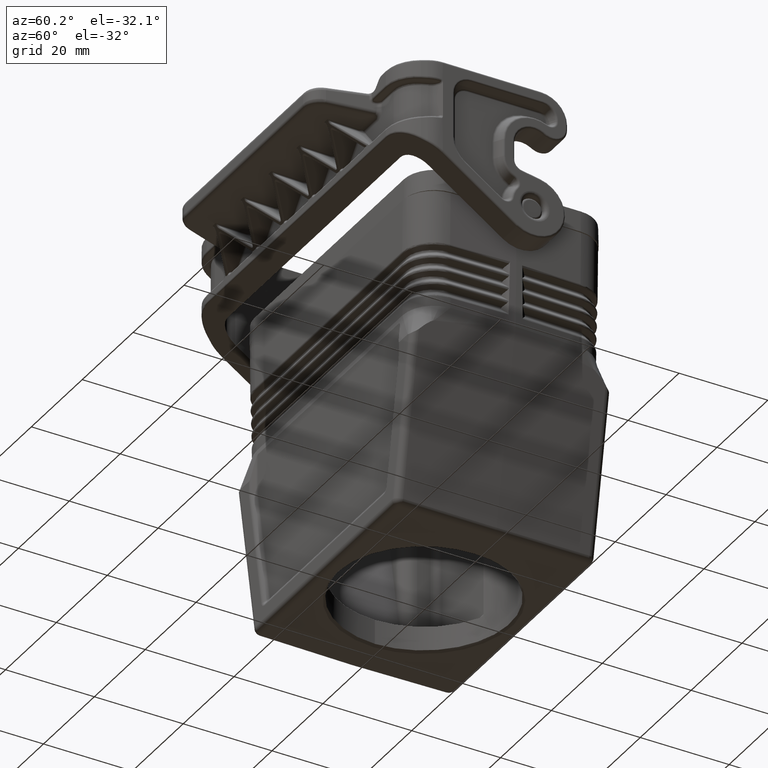
[diagram: clean part render]
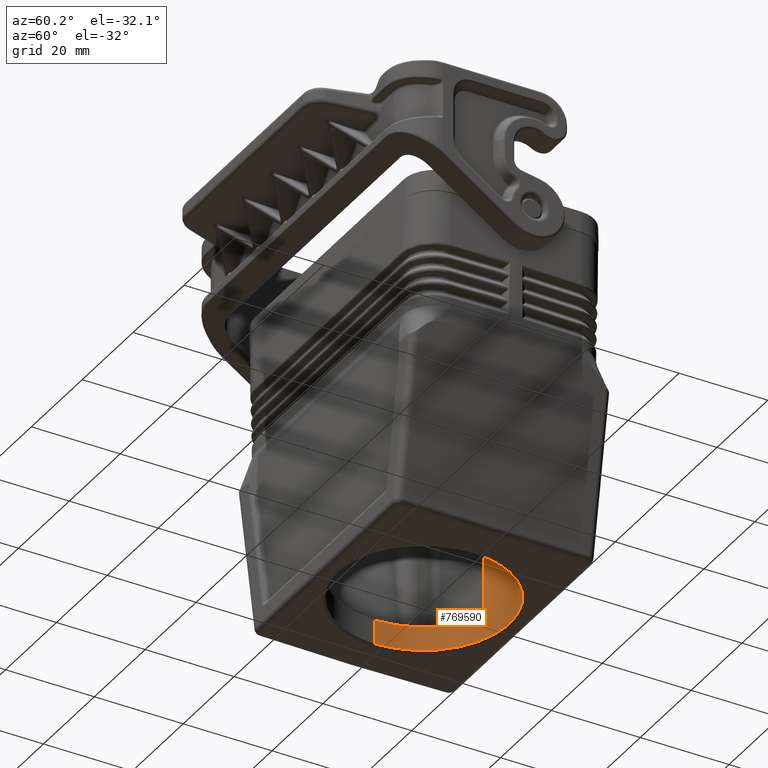
[diagram: same view with one face highlighted and labeled with its STEP entity id]
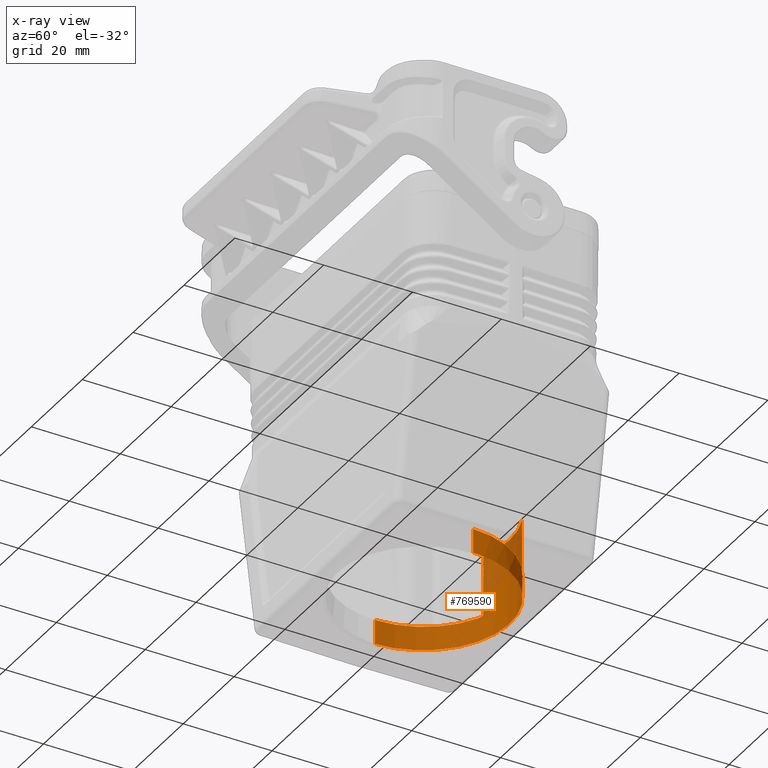
[diagram: x-ray of the same camera — body ghosted, the highlighted face saturated]
A machine part, auxiliary view. The second image highlights one B-rep face of the part: STEP entity #769590.
The next image is the same camera in x-ray: the body ghosted, the highlighted face saturated — about 5% of this face is hidden behind the body in this view.
In plain terms, the highlighted cylindrical surface (partial cylindrical patch) has radius 19.3 mm, axis along (0, 0, 1).
Its self-contained STEP definition (entity closure, byte-faithful):
#334410=CARTESIAN_POINT('',(95.6200000000002,27.41,70.0000000000001));
#334420=DIRECTION('',(-2.4980018054066E-16,2.4980018054066E-16,-1.));
#334430=DIRECTION('',(-6.24001301981464E-32,-1.,-2.4980018054066E-16));
#334440=AXIS2_PLACEMENT_3D('',#334410,#334420,#334430);
#334450=CYLINDRICAL_SURFACE('',#334440,19.3);
#350080=CARTESIAN_POINT('',(78.3700000000001,36.0660672363375,64.));
#350090=VERTEX_POINT('',#350080);
#350120=CARTESIAN_POINT('',(95.6200000000002,27.41,64.));
#350130=DIRECTION('',(-2.4980018054066E-16,2.4980018054066E-16,-1.));
#350140=DIRECTION('',(-6.24001301981464E-32,-1.,-2.4980018054066E-16));
#350150=AXIS2_PLACEMENT_3D('',#350120,#350130,#350140);
#350160=CIRCLE('',#350150,19.3);
#350170=CARTESIAN_POINT('',(95.6200000000002,46.71,64.));
#350180=VERTEX_POINT('',#350170);
#350190=EDGE_CURVE('',#350090,#350180,#350160,.T.);
#365250=CARTESIAN_POINT('',(78.3700000000001,25.16326959705,63.5));
#365260=DIRECTION('',(4.65187877420629E-18,1.,2.66505956485224E-16));
#365270=DIRECTION('',(0.,2.66505956485224E-16,-1.));
#365280=AXIS2_PLACEMENT_3D('',#365250,#365260,#365270);
#365290=CYLINDRICAL_SURFACE('',#365280,0.5);
#365430=CARTESIAN_POINT('',(77.8699999999755,34.9880934276542,
63.5000000000001));
#365440=VERTEX_POINT('',#365430);
#365470=CARTESIAN_POINT('',(78.3699999999749,36.0660672363502,
64.0000000000006));
#365480=CARTESIAN_POINT('',(78.3571605472998,36.040480494404,
63.9999999999993));
#365490=CARTESIAN_POINT('',(78.3443784947892,36.0148660775239,
63.999506005606));
#365500=CARTESIAN_POINT('',(78.33166022195,35.9892370126188,
63.998527894324));
#365510=CARTESIAN_POINT('',(78.3189419923464,35.9636080348392,
63.9975497863671));
#365520=CARTESIAN_POINT('',(78.3062888281933,35.9379670117321,
63.9960876964608));
#365530=CARTESIAN_POINT('',(78.2937054512277,35.9123242239506,
63.9941448591534));
#365540=CARTESIAN_POINT('',(78.2811220249833,35.8866813357472,
63.9922020142375));
#365550=CARTESIAN_POINT('',(78.2686141907328,35.8610486197536,
63.9897797248363));
#365560=CARTESIAN_POINT('',(78.2561723318657,35.8354073320717,
63.9868708883956));
#365570=CARTESIAN_POINT('',(78.2437317080912,35.8097685897782,
63.9839623407126));
#365580=CARTESIAN_POINT('',(78.2313634577482,35.7841343172907,
63.9805683249929));
#365590=CARTESIAN_POINT('',(78.2190800750108,35.7585319526313,
63.9766793222296));
#365600=CARTESIAN_POINT('',(78.2067966897909,35.7329295827978,
63.9727903186804));
#365610=CARTESIAN_POINT('',(78.194598006849,35.7073587753368,
63.9684064035724));
#365620=CARTESIAN_POINT('',(78.1824962669705,35.6818476509529,
63.9635108953412));
#365630=CARTESIAN_POINT('',(78.1703945464258,35.6563365673257,
63.9586153949311));
#365640=CARTESIAN_POINT('',(78.1583895361083,35.6308846697078,
63.9532083970962));
#365650=CARTESIAN_POINT('',(78.1464940083107,35.6055224579252,
63.9472639843328));
#365660=CARTESIAN_POINT('',(78.134599420597,35.5801622504763,
63.9413200413465));
#365670=CARTESIAN_POINT('',(78.1228146951973,35.5548927809595,
63.9348403277296));
#365680=CARTESIAN_POINT('',(78.1111253079257,35.5296863866209,
63.9277661672129));
#365690=CARTESIAN_POINT('',(78.0994389158601,35.504486450991,
63.9206938193291));
#365700=CARTESIAN_POINT('',(78.0878614445315,35.4793786080569,
63.9130346278704));
#365710=CARTESIAN_POINT('',(78.0764204227209,35.4544276126295,
63.9047357555803));
#365720=CARTESIAN_POINT('',(78.0649794411793,35.429476705022,
63.8964369124998));
#365730=CARTESIAN_POINT('',(78.053674084129,35.4046808298722,
63.887498699931));
#365740=CARTESIAN_POINT('',(78.0425337177205,35.3801116112126,
63.8778436634057));
#365750=CARTESIAN_POINT('',(78.0369634914656,35.3678269069379,
63.8730161078323));
#365760=CARTESIAN_POINT('',(78.0314344505539,35.3555987740484,
63.8680088053998));
#365770=CARTESIAN_POINT('',(78.0259507743242,35.3434375805503,
63.8628086690144));
#365780=CARTESIAN_POINT('',(78.0204647266283,35.3312711278321,
63.8576062837822));
#365790=CARTESIAN_POINT('',(78.0150355250238,35.3191972022701,
63.8522229946718));
#365800=CARTESIAN_POINT('',(78.0096295747503,35.3071421087303,
63.8466023032315));
#365810=CARTESIAN_POINT('',(78.0042246086391,35.2950892098407,
63.8409826350476));
#365820=CARTESIAN_POINT('',(77.9988524353079,35.2830762258263,
63.8351341485032));
#365830=CARTESIAN_POINT('',(77.9935299524067,35.271142007446,
63.8290445308273));
#365840=CARTESIAN_POINT('',(77.9882074473619,35.2592077394145,
63.822954887816));
#365850=CARTESIAN_POINT('',(77.9829345737572,35.2473521071016,
63.8166241732663));
#365860=CARTESIAN_POINT('',(77.9777277625786,35.2356137331626,
63.8100362748935));
#365870=CARTESIAN_POINT('',(77.9725209307087,35.2238753125766,
63.8034483503412));
#365880=CARTESIAN_POINT('',(77.967380029752,35.2122538555797,
63.7966032738787));
#365890=CARTESIAN_POINT('',(77.9623214275152,35.200788627013,
63.7894791556179));
#365900=CARTESIAN_POINT('',(77.9572628201626,35.1893233868514,
63.7823550301523));
#365910=CARTESIAN_POINT('',(77.9522862553869,35.1780137935191,
63.774951806704));
#365920=CARTESIAN_POINT('',(77.9474090540628,35.1669020399457,
63.7672393915965));
#365930=CARTESIAN_POINT('',(77.9441812681894,35.1595481583177,
63.7621352298284));
#365940=CARTESIAN_POINT('',(77.9409969462894,35.1522808152707,
63.7568953651192));
#365950=CARTESIAN_POINT('',(77.9378617061567,35.1451137908274,
63.7515084392337));
#365960=CARTESIAN_POINT('',(77.9347264770362,35.1379467915574,
63.7461215322691));
#365970=CARTESIAN_POINT('',(77.931640244944,35.1308799156296,
63.7405874948665));
#365980=CARTESIAN_POINT('',(77.9286095839061,35.1239292935016,
63.7348925298655));
#365990=CARTESIAN_POINT('',(77.9255789451798,35.116978722544,
63.7291976067907));
#366000=CARTESIAN_POINT('',(77.9226037571549,35.1101441268878,
63.7233416273561));
#366010=CARTESIAN_POINT('',(77.9196921323813,35.1034453524733,
63.7173081322943));
#366020=CARTESIAN_POINT('',(77.9167796786075,35.096744670778,
63.7112729193706));
#366030=CARTESIAN_POINT('',(77.9139342567022,35.0901878048386,
63.7050681249578));
#366040=CARTESIAN_POINT('',(77.9111560365575,35.0837764808757,
63.6986509934845));
#366050=CARTESIAN_POINT('',(77.9055983327169,35.0709509170411,
63.6858138119878));
#366060=CARTESIAN_POINT('',(77.9003078067043,35.0587030300489,
63.6721191225455));
#366070=CARTESIAN_POINT('',(77.8954698134348,35.0474753463104,
63.6575471422757));
#366080=CARTESIAN_POINT('',(77.8930507079316,35.041861251787,
63.6502608242306));
#366090=CARTESIAN_POINT('',(77.8907445272037,35.0365018551406,
63.6427539872935));
#366100=CARTESIAN_POINT('',(77.888575622013,35.031455866678,
63.6350206216838));
#366110=CARTESIAN_POINT('',(77.8874911647826,35.028932861663,
63.631153922352));
#366120=CARTESIAN_POINT('',(77.8864410347144,35.0264882335887,
63.6272305052574));
#366130=CARTESIAN_POINT('',(77.8854284561382,35.0241297700813,
63.6232494173588));
#366140=CARTESIAN_POINT('',(77.8844164095142,35.021772545579,
63.6192704209015));
#366150=CARTESIAN_POINT('',(77.8834379464105,35.0194922431391,
63.6152182283979));
#366160=CARTESIAN_POINT('',(77.8824986163896,35.0173020622564,
63.6110963589767));
#366170=CARTESIAN_POINT('',(77.8805785913632,35.0128252521754,
63.6026711066505));
#366180=CARTESIAN_POINT('',(77.8788235259116,35.0087283601286,
63.5939576371473));
#366190=CARTESIAN_POINT('',(77.8772804184329,35.0051235572481,
63.5850141984641));
#366200=CARTESIAN_POINT('',(77.8757372775288,35.0015186762832,
63.5760705660553));
#366210=CARTESIAN_POINT('',(77.8744071129814,34.9984083081178,
63.5669013837977));
#366220=CARTESIAN_POINT('',(77.8733262218664,34.9958796334044,
63.5575774097583));
#366230=CARTESIAN_POINT('',(77.8727858080088,34.9946153702076,
63.5529156961882));
#366240=CARTESIAN_POINT('',(77.8723075861651,34.993496231159,
63.5482160722117));
#366250=CARTESIAN_POINT('',(77.8718947657384,34.9925299599519,
63.5434876488342));
#366260=CARTESIAN_POINT('',(77.8714822941885,34.9915645053462,
63.5387632214743));
#366270=CARTESIAN_POINT('',(77.8711336927746,34.9907483351912,
63.5339948598622));
#366280=CARTESIAN_POINT('',(77.8708523144242,34.9900894741164,
63.5291819804712));
#366290=CARTESIAN_POINT('',(77.8705710146558,34.9894307970455,
63.5243704451996));
#366300=CARTESIAN_POINT('',(77.870357428729,34.9889305791978,
63.5195202982474));
#366310=CARTESIAN_POINT('',(77.8702146659232,34.9885962152753,
63.5146499092707));
#366320=CARTESIAN_POINT('',(77.8700719043239,34.9882618541787,
63.5097795614569));
#366330=CARTESIAN_POINT('',(77.8699999999755,34.9880934276542,
63.5048895540928));
#366340=CARTESIAN_POINT('',(77.8699999999755,34.9880934276542,
63.5000000000001));
#366350=B_SPLINE_CURVE_WITH_KNOTS('',3,(#365470,#365480,#365490,#365500,
#365510,#365520,#365530,#365540,#365550,#365560,#365570,#365580,#365590,
#365600,#365610,#365620,#365630,#365640,#365650,#365660,#365670,#365680,
#365690,#365700,#365710,#365720,#365730,#365740,#365750,#365760,#365770,
#365780,#365790,#365800,#365810,#365820,#365830,#365840,#365850,#365860,
#365870,#365880,#365890,#365900,#365910,#365920,#365930,#365940,#365950,
#365960,#365970,#365980,#365990,#366000,#366010,#366020,#366030,#366040,
#366050,#366060,#366070,#366080,#366090,#366100,#366110,#366120,#366130,
#366140,#366150,#366160,#366170,#366180,#366190,#366200,#366210,#366220,
#366230,#366240,#366250,#366260,#366270,#366280,#366290,#366300,#366310,
#366320,#366330,#366340),.UNSPECIFIED.,.F.,.F.,(4,3,3,3,3,3,3,3,3,3,3,3,
3,3,3,3,3,3,3,3,3,3,3,3,3,3,3,3,3,4),(0.,0.0858820054448241,
0.171766023070007,0.257664616245117,0.34363128398723,0.429614163113653,
0.515559106772825,0.60148480264789,0.687507661549433,0.773507184651297,
0.816474040687193,0.859445348491435,0.902615466441479,0.945899484436656,
0.989177958283305,1.0323712890306,1.06089206851353,1.08936288619227,
1.11779645618503,1.14622186137835,1.20330016027379,1.2317964113734,
1.24601511611649,1.2602607491345,1.28953025599367,1.31877065343851,
1.33332650115069,1.34787928501832,1.36250505580773,1.37716855394018),
.UNSPECIFIED.);
#366360=SURFACE_CURVE('',#366350,(#365290,#334450),.CURVE_3D.);
#366370=EDGE_CURVE('',#350090,#365440,#366360,.T.);
#369450=CARTESIAN_POINT('',(77.8699999999755,19.8319065723457,
63.5000000000069));
#369460=VERTEX_POINT('',#369450);
#369490=CARTESIAN_POINT('',(77.8700000000001,19.8319065722309,
70.0000000000001));
#369500=DIRECTION('',(-2.4980018054066E-16,2.4980018054066E-16,-1.));
#369510=VECTOR('',#369500,1.);
#369520=LINE('',#369490,#369510);
#369530=CARTESIAN_POINT('',(77.8700000000001,19.831906572231,
50.0000000000001));
#369540=VERTEX_POINT('',#369530);
#369550=EDGE_CURVE('',#369460,#369540,#369520,.T.);
#369610=CARTESIAN_POINT('',(77.8700000000001,34.988093427769,
50.0000000000001));
#369620=VERTEX_POINT('',#369610);
#369650=CARTESIAN_POINT('',(77.8700000000001,34.988093427769,
70.0000000000001));
#369660=DIRECTION('',(-2.4980018054066E-16,2.4980018054066E-16,-1.));
#369670=VECTOR('',#369660,1.);
#369680=LINE('',#369650,#369670);
#369690=EDGE_CURVE('',#365440,#369620,#369680,.T.);
#616340=CARTESIAN_POINT('',(95.6200000000002,8.10999999999997,
69.5000180708964));
#616350=VERTEX_POINT('',#616340);
#616730=CARTESIAN_POINT('',(95.6200000000002,46.71,69.5000180708965));
#616740=VERTEX_POINT('',#616730);
#697570=CARTESIAN_POINT('',(95.6199999999998,46.71,69.5000180708965));
#697580=CARTESIAN_POINT('',(95.5981492547411,46.71,69.4998273823137));
#697590=CARTESIAN_POINT('',(95.5769630462747,46.7099652123489,
69.4996053838933));
#697600=CARTESIAN_POINT('',(95.0726794048117,46.7082524646061,
69.4952045703989));
#697610=CARTESIAN_POINT('',(94.5907460345904,46.688576321461,
69.4909988400722));
#697620=CARTESIAN_POINT('',(92.5124276627444,46.525435350156,
69.472861951759));
#697630=CARTESIAN_POINT('',(90.9369706378416,46.2016577472007,
69.4591137869674));
#697640=CARTESIAN_POINT('',(87.9023683601915,45.1721875596111,
69.4326331379875));
#697650=CARTESIAN_POINT('',(86.4550210715347,44.4704980001263,
69.4200036039501));
#697660=CARTESIAN_POINT('',(83.7671609873971,42.7255939351403,
69.3965498920046));
#697670=CARTESIAN_POINT('',(82.5370866832362,41.6891752729563,
69.3858167956813));
#697680=CARTESIAN_POINT('',(80.3614624180324,39.3362089248555,
69.3668335617423));
#697690=CARTESIAN_POINT('',(79.4243653854254,38.0288065494302,
69.358657176789));
#697700=CARTESIAN_POINT('',(77.8949504689908,35.2125719846799,
69.3453128263185));
#697710=CARTESIAN_POINT('',(77.3085672727083,33.7146866572993,
69.3401966394867));
#697720=CARTESIAN_POINT('',(76.5195598982413,30.6085639141087,
69.3333125849276));
#697730=CARTESIAN_POINT('',(76.3200000000002,29.0123946979873,
69.3315714516384));
#697740=CARTESIAN_POINT('',(76.3200000000002,25.8076053020127,
69.3315714516384));
#697750=CARTESIAN_POINT('',(76.5195598982072,24.2114360860252,
69.3333125849273));
#697760=CARTESIAN_POINT('',(77.3085672726742,21.1053133428347,
69.3401966394864));
#697770=CARTESIAN_POINT('',(77.8949504687418,19.6074280157785,
69.3453128263163));
#697780=CARTESIAN_POINT('',(79.4243653851764,16.7911934510282,
69.3586571767869));
#697790=CARTESIAN_POINT('',(80.3614624173104,15.4837910759253,
69.366833561736));
#697800=CARTESIAN_POINT('',(82.5370866825143,13.1308247278245,
69.3858167956751));
#697810=CARTESIAN_POINT('',(83.7671609860226,12.094406065752,
69.3965498919926));
#697820=CARTESIAN_POINT('',(86.4550210701603,10.3495020007659,
69.4200036039381));
#697830=CARTESIAN_POINT('',(87.902368358191,9.64781244106753,
69.43263313797));
#697840=CARTESIAN_POINT('',(90.9369706358413,8.61834225347787,
69.4591137869499));
#697850=CARTESIAN_POINT('',(92.5124276603817,8.29456465002941,
69.4728619517384));
#697860=CARTESIAN_POINT('',(94.5907460343727,8.13142367855608,
69.4909988400703));
#697870=CARTESIAN_POINT('',(95.072679404597,8.11174753539548,
69.495204570397));
#697880=CARTESIAN_POINT('',(95.576963046276,8.11003478765226,
69.4996053838933));
#697890=CARTESIAN_POINT('',(95.5981492547418,8.10999999999997,
69.4998273823137));
#697900=CARTESIAN_POINT('',(95.6199999999998,8.10999999999997,
69.5000180708964));
#697910=B_SPLINE_CURVE_WITH_KNOTS('',3,(#697570,#697580,#697590,#697600,
#697610,#697620,#697630,#697640,#697650,#697660,#697670,#697680,#697690,
#697700,#697710,#697720,#697730,#697740,#697750,#697760,#697770,#697780,
#697790,#697800,#697810,#697820,#697830,#697840,#697850,#697860,#697870,
#697880,#697890,#697900),.UNSPECIFIED.,.F.,.F.,(4,2,2,2,2,2,2,2,2,2,2,2,
2,2,2,2,4),(0.,0.0684987025593491,1.5342248591009,6.40053277802679,
11.2668218696782,16.1329019644747,20.9989452241505,25.8648722623451,
30.730781127161,35.5966899919769,40.4626170293319,45.3286602849993,
50.1947403693282,55.0610294405579,59.9273373262307,61.3930634699251,
61.4615621718521),.UNSPECIFIED.);
#697920=EDGE_CURVE('',#616740,#616350,#697910,.T.);
#706300=CARTESIAN_POINT('',(95.6200000000002,27.41,50.0000000000001));
#706310=DIRECTION('',(-2.4980018054066E-16,2.4980018054066E-16,-1.));
#706320=DIRECTION('',(-6.24001301981464E-32,-1.,-2.4980018054066E-16));
#706330=AXIS2_PLACEMENT_3D('',#706300,#706310,#706320);
#706340=CIRCLE('',#706330,19.3);
#707380=EDGE_CURVE('',#369540,#369620,#706340,.T.);
#768360=CARTESIAN_POINT('',(95.6200000000002,27.41,70.0000000000001));
#768370=DIRECTION('',(-2.4980018054066E-16,2.4980018054066E-16,-1.));
#768380=DIRECTION('',(-6.24001301981464E-32,-1.,-2.4980018054066E-16));
#768390=AXIS2_PLACEMENT_3D('',#768360,#768370,#768380);
#768400=CYLINDRICAL_SURFACE('',#768390,19.3);
#768410=CARTESIAN_POINT('',(95.6200000000002,46.71,70.0000000000001));
#768420=DIRECTION('',(-2.4980018054066E-16,2.4980018054066E-16,-1.));
#768430=VECTOR('',#768420,1.);
#768440=LINE('',#768410,#768430);
#768450=EDGE_CURVE('',#616740,#350180,#768440,.T.);
#768460=ORIENTED_EDGE('',*,*,#768450,.F.);
#768470=ORIENTED_EDGE('',*,*,#350190,.T.);
#768480=ORIENTED_EDGE('',*,*,#366370,.F.);
#768490=ORIENTED_EDGE('',*,*,#369690,.F.);
#768500=ORIENTED_EDGE('',*,*,#707380,.T.);
#768510=ORIENTED_EDGE('',*,*,#369550,.T.);
#768520=CARTESIAN_POINT('',(77.8699999999755,19.8319065723457,
63.5000000000069));
#768530=CARTESIAN_POINT('',(77.8699999999756,19.8319065723456,
63.5048895540961));
#768540=CARTESIAN_POINT('',(77.8700719043239,19.8317381458212,
63.5097795614599));
#768550=CARTESIAN_POINT('',(77.8702146659233,19.8314037847243,
63.5146499092766));
#768560=CARTESIAN_POINT('',(77.8703574287295,19.8310694208011,
63.5195202982617));
#768570=CARTESIAN_POINT('',(77.8705710146566,19.8305692029527,
63.5243704452137));
#768580=CARTESIAN_POINT('',(77.8708523144245,19.8299105258828,
63.5291819804762));
#768590=CARTESIAN_POINT('',(77.8711336927748,19.8292516648082,
63.5339948598653));
#768600=CARTESIAN_POINT('',(77.8714822941887,19.8284354946533,
63.538763221477));
#768610=CARTESIAN_POINT('',(77.8718947657387,19.8274700400472,
63.5434876488382));
#768620=CARTESIAN_POINT('',(77.872307586166,19.8265037688389,
63.5482160722213));
#768630=CARTESIAN_POINT('',(77.8727858080099,19.8253846297899,
63.5529156961973));
#768640=CARTESIAN_POINT('',(77.8733262218668,19.8241203665947,
63.5575774097614));
#768650=CARTESIAN_POINT('',(77.8744071129818,19.8215916918813,
63.5669013838003));
#768660=CARTESIAN_POINT('',(77.8757372775291,19.818481323716,
63.5760705660573));
#768670=CARTESIAN_POINT('',(77.8772804184332,19.8148764427514,
63.5850141984654));
#768680=CARTESIAN_POINT('',(77.8788235259117,19.811271639871,
63.5939576371482));
#768690=CARTESIAN_POINT('',(77.8805785913633,19.8071747478243,
63.6026711066508));
#768700=CARTESIAN_POINT('',(77.8824986163895,19.8026979377437,
63.6110963589764));
#768710=CARTESIAN_POINT('',(77.8834379464108,19.80050775686,
63.6152182283994));
#768720=CARTESIAN_POINT('',(77.8844164095146,19.7982274544201,
63.6192704209031));
#768730=CARTESIAN_POINT('',(77.8854284561382,19.7958702299186,
63.6232494173589));
#768740=CARTESIAN_POINT('',(77.8864410347141,19.7935117664117,
63.6272305052566));
#768750=CARTESIAN_POINT('',(77.8874911647823,19.7910671383375,
63.6311539223512));
#768760=CARTESIAN_POINT('',(77.8885756220131,19.7885441333217,
63.6350206216841));
#768770=CARTESIAN_POINT('',(77.8907445272038,19.783498144859,
63.642753987294));
#768780=CARTESIAN_POINT('',(77.8930507079318,19.7781387482125,
63.6502608242312));
#768790=CARTESIAN_POINT('',(77.895469813435,19.7725246536889,
63.6575471422765));
#768800=CARTESIAN_POINT('',(77.9003078067047,19.7612969699501,
63.6721191225466));
#768810=CARTESIAN_POINT('',(77.9055983327175,19.7490490829576,
63.6858138119892));
#768820=CARTESIAN_POINT('',(77.9111560365583,19.7362235191226,
63.6986509934861));
#768830=CARTESIAN_POINT('',(77.913934256703,19.7298121951596,
63.7050681249595));
#768840=CARTESIAN_POINT('',(77.9167796786084,19.72325532922,
63.7112729193725));
#768850=CARTESIAN_POINT('',(77.9196921323823,19.7165546475245,
63.7173081322963));
#768860=CARTESIAN_POINT('',(77.9226037571559,19.7098558731097,
63.7233416273582));
#768870=CARTESIAN_POINT('',(77.9255789451809,19.7030212774535,
63.7291976067928));
#768880=CARTESIAN_POINT('',(77.9286095839073,19.6960707064956,
63.7348925298677));
#768890=CARTESIAN_POINT('',(77.9316402449453,19.6891200843673,
63.7405874948689));
#768900=CARTESIAN_POINT('',(77.9347264770375,19.6820532084395,
63.7461215322715));
#768910=CARTESIAN_POINT('',(77.9378617061582,19.6748862091692,
63.7515084392362));
#768920=CARTESIAN_POINT('',(77.940996946291,19.6677191847258,
63.7568953651218));
#768930=CARTESIAN_POINT('',(77.9441812681911,19.6604518416785,
63.7621352298311));
#768940=CARTESIAN_POINT('',(77.9474090540646,19.6530979600503,
63.7672393915993));
#768950=CARTESIAN_POINT('',(77.9522862553886,19.6419862064769,
63.7749518067067));
#768960=CARTESIAN_POINT('',(77.9572628201643,19.6306766131447,
63.7823550301548));
#768970=CARTESIAN_POINT('',(77.9623214275169,19.619211372983,
63.7894791556203));
#768980=CARTESIAN_POINT('',(77.9673800297537,19.6077461444164,
63.796603273881));
#768990=CARTESIAN_POINT('',(77.9725209307104,19.5961246874194,
63.8034483503435));
#769000=CARTESIAN_POINT('',(77.9777277625803,19.5843862668336,
63.8100362748956));
#769010=CARTESIAN_POINT('',(77.9829345737525,19.5726478929088,
63.8166241732603));
#769020=CARTESIAN_POINT('',(77.9882074473571,19.5607922605962,
63.8229548878106));
#769030=CARTESIAN_POINT('',(77.9935299524084,19.5488579925502,
63.8290445308291));
#769040=CARTESIAN_POINT('',(77.9988524353095,19.5369237741699,
63.835134148505));
#769050=CARTESIAN_POINT('',(78.0042246086407,19.5249107901557,
63.8409826350493));
#769060=CARTESIAN_POINT('',(78.0096295747519,19.512857891266,
63.8466023032332));
#769070=CARTESIAN_POINT('',(78.0150355250254,19.5008027977264,
63.8522229946734));
#769080=CARTESIAN_POINT('',(78.0204647266299,19.4887288721644,
63.8576062837838));
#769090=CARTESIAN_POINT('',(78.0259507743258,19.4765624194463,
63.8628086690159));
#769100=CARTESIAN_POINT('',(78.0314344505554,19.4644012259482,
63.8680088054012));
#769110=CARTESIAN_POINT('',(78.0369634914671,19.4521730930588,
63.8730161078337));
#769120=CARTESIAN_POINT('',(78.042533717722,19.4398883887841,
63.877843663407));
#769130=CARTESIAN_POINT('',(78.0536740841304,19.4153191701245,
63.8874986999322));
#769140=CARTESIAN_POINT('',(78.0649794411807,19.390523294975,
63.8964369125008));
#769150=CARTESIAN_POINT('',(78.0764204227223,19.3655723873675,
63.9047357555813));
#769160=CARTESIAN_POINT('',(78.0878614445328,19.3406213919403,
63.9130346278713));
#769170=CARTESIAN_POINT('',(78.0994389158614,19.3155135490062,
63.9206938193299));
#769180=CARTESIAN_POINT('',(78.1111253079269,19.2903136133764,
63.9277661672136));
#769190=CARTESIAN_POINT('',(78.1228146951985,19.2651072190379,
63.9348403277302));
#769200=CARTESIAN_POINT('',(78.1345994205981,19.2398377495212,
63.9413200413471));
#769210=CARTESIAN_POINT('',(78.1464940083117,19.2144775420725,
63.9472639843333));
#769220=CARTESIAN_POINT('',(78.1583895361094,19.1891153302901,
63.9532083970967));
#769230=CARTESIAN_POINT('',(78.1703945464267,19.1636634326722,
63.9586153949315));
#769240=CARTESIAN_POINT('',(78.1824962669714,19.1381523490451,
63.9635108953416));
#769250=CARTESIAN_POINT('',(78.1945980068498,19.1126412246614,
63.9684064035727));
#769260=CARTESIAN_POINT('',(78.2067966897917,19.0870704172005,
63.9727903186806));
#769270=CARTESIAN_POINT('',(78.2190800750115,19.0614680473671,
63.9766793222298));
#769280=CARTESIAN_POINT('',(78.2313634577489,19.0358656827078,
63.9805683249931));
#769290=CARTESIAN_POINT('',(78.2437317080918,19.0102314102205,
63.9839623407127));
#769300=CARTESIAN_POINT('',(78.2561723318663,18.9845926679271,
63.9868708883957));
#769310=CARTESIAN_POINT('',(78.2686141907333,18.9589513802453,
63.9897797248364));
#769320=CARTESIAN_POINT('',(78.2811220249837,18.933318664252,
63.9922020142375));
#769330=CARTESIAN_POINT('',(78.2937054512281,18.9076757760486,
63.9941448591534));
#769340=CARTESIAN_POINT('',(78.3062888281931,18.8820329882684,
63.9960876964607));
#769350=CARTESIAN_POINT('',(78.3189419923461,18.8563919651614,
63.997549786367));
#769360=CARTESIAN_POINT('',(78.3316602219502,18.8307629873808,
63.998527894324));
#769370=CARTESIAN_POINT('',(78.3443784947893,18.8051339224758,
63.999506005606));
#769380=CARTESIAN_POINT('',(78.3571605472999,18.7795195055958,
63.9999999999993));
#769390=CARTESIAN_POINT('',(78.3699999999749,18.7539327636498,
64.0000000000006));
#769400=B_SPLINE_CURVE_WITH_KNOTS('',3,(#768520,#768530,#768540,#768550,
#768560,#768570,#768580,#768590,#768600,#768610,#768620,#768630,#768640,
#768650,#768660,#768670,#768680,#768690,#768700,#768710,#768720,#768730,
#768740,#768750,#768760,#768770,#768780,#768790,#768800,#768810,#768820,
#768830,#768840,#768850,#768860,#768870,#768880,#768890,#768900,#768910,
#768920,#768930,#768940,#768950,#768960,#768970,#768980,#768990,#769000,
#769010,#769020,#769030,#769040,#769050,#769060,#769070,#769080,#769090,
#769100,#769110,#769120,#769130,#769140,#769150,#769160,#769170,#769180,
#769190,#769200,#769210,#769220,#769230,#769240,#769250,#769260,#769270,
#769280,#769290,#769300,#769310,#769320,#769330,#769340,#769350,#769360,
#769370,#769380,#769390),.UNSPECIFIED.,.F.,.F.,(4,3,3,3,3,3,3,3,3,3,3,3,
3,3,3,3,3,3,3,3,3,3,3,3,3,3,3,3,3,4),(0.,0.0146634981315498,
0.0292892689200664,0.043842052786783,0.0583979004980839,
0.0876382979411502,0.116907804798566,0.131153437816907,0.145372142560344
,0.173868393660603,0.230946692557396,0.259372097751381,0.287805667744838
,0.316276485424248,0.344797264907848,0.387990595654941,0.431269069501385
,0.474553087496348,0.517723205446157,0.560694513250164,0.603661369285867
,0.689660892387297,0.775683751288416,0.861609447163044,0.947554390821812
,1.03353726994777,1.11950393768948,1.20540253086414,1.29128654848891,
1.3771685539333),.UNSPECIFIED.);
#769410=SURFACE_CURVE('',#769400,(#365290,#334450),.CURVE_3D.);
#769420=CARTESIAN_POINT('',(78.3700000000001,18.7539327636624,64.));
#769430=VERTEX_POINT('',#769420);
#769440=EDGE_CURVE('',#369460,#769430,#769410,.T.);
#769450=ORIENTED_EDGE('',*,*,#769440,.F.);
#769460=CARTESIAN_POINT('',(95.6200000000002,8.10999999999998,64.));
#769470=VERTEX_POINT('',#769460);
#769480=EDGE_CURVE('',#769470,#769430,#350160,.T.);
#769490=ORIENTED_EDGE('',*,*,#769480,.T.);
#769500=CARTESIAN_POINT('',(95.6200000000002,8.10999999999997,
70.0000000000001));
#769510=DIRECTION('',(-2.4980018054066E-16,2.4980018054066E-16,-1.));
#769520=VECTOR('',#769510,1.);
#769530=LINE('',#769500,#769520);
#769540=EDGE_CURVE('',#616350,#769470,#769530,.T.);
#769550=ORIENTED_EDGE('',*,*,#769540,.T.);
#769560=ORIENTED_EDGE('',*,*,#697920,.T.);
#769570=EDGE_LOOP('',(#769560,#769550,#769490,#769450,#768510,#768500,
#768490,#768480,#768470,#768460));
#769580=FACE_OUTER_BOUND('',#769570,.T.);
#769590=ADVANCED_FACE('',(#769580),#768400,.F.);